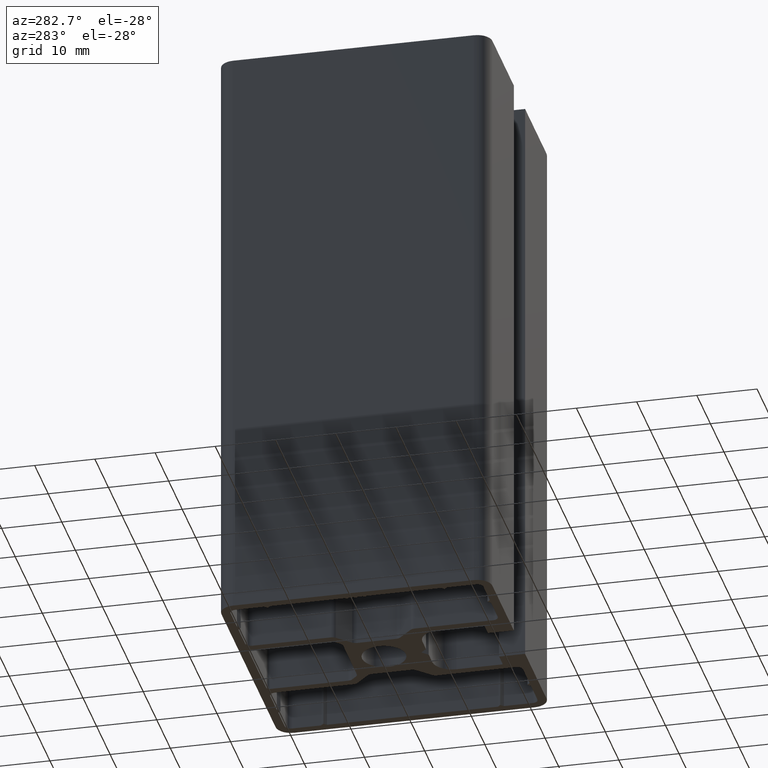
[diagram: clean part render]
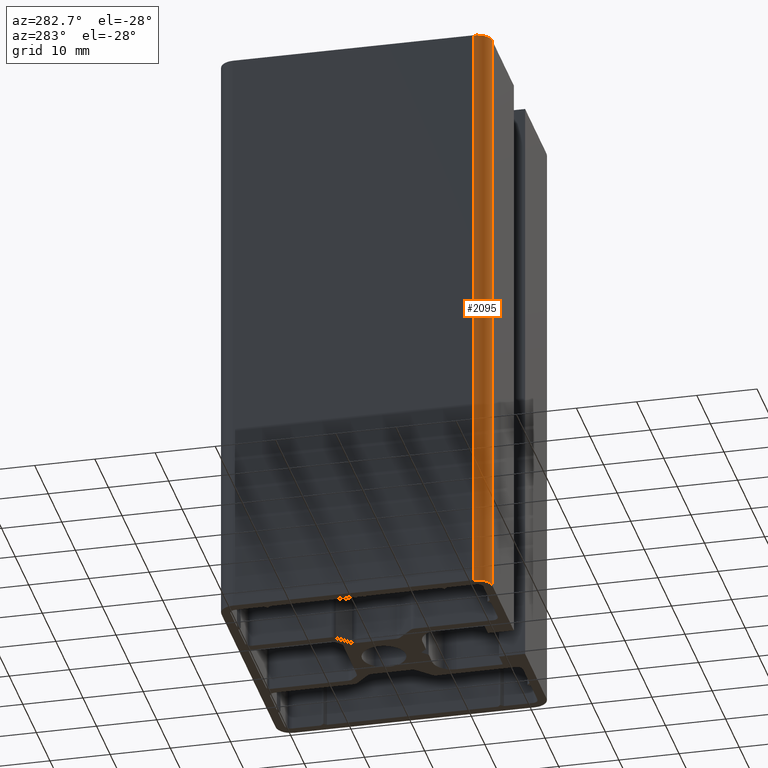
[diagram: same view with one face highlighted and labeled with its STEP entity id]
A machine part, auxiliary view. The second image highlights one B-rep face of the part: STEP entity #2095.
In plain terms, the highlighted cylindrical surface (edge-blend (fillet) strip) has radius 2.5 mm, axis along (0, 0, 1).
Its self-contained STEP definition (entity closure, byte-faithful):
#95=CIRCLE('',#2270,2.5);
#97=CIRCLE('',#2275,2.5);
#135=CYLINDRICAL_SURFACE('',#2274,2.5);
#235=FACE_OUTER_BOUND('',#344,.T.);
#344=EDGE_LOOP('',(#1806,#1807,#1808,#1809));
#574=LINE('',#3464,#803);
#576=LINE('',#3468,#805);
#803=VECTOR('',#2845,100.);
#805=VECTOR('',#2849,100.);
#1008=VERTEX_POINT('',#3453);
#1009=VERTEX_POINT('',#3455);
#1011=VERTEX_POINT('',#3463);
#1012=VERTEX_POINT('',#3467);
#1305=EDGE_CURVE('',#1009,#1008,#95,.T.);
#1309=EDGE_CURVE('',#1011,#1009,#574,.T.);
#1311=EDGE_CURVE('',#1012,#1008,#576,.T.);
#1312=EDGE_CURVE('',#1011,#1012,#97,.T.);
#1806=ORIENTED_EDGE('',*,*,#1305,.T.);
#1807=ORIENTED_EDGE('',*,*,#1311,.F.);
#1808=ORIENTED_EDGE('',*,*,#1312,.F.);
#1809=ORIENTED_EDGE('',*,*,#1309,.T.);
#2095=ADVANCED_FACE('',(#235),#135,.T.);
#2270=AXIS2_PLACEMENT_3D('',#3456,#2835,#2836);
#2274=AXIS2_PLACEMENT_3D('',#3466,#2847,#2848);
#2275=AXIS2_PLACEMENT_3D('',#3469,#2850,#2851);
#2835=DIRECTION('center_axis',(0.,0.,-1.));
#2836=DIRECTION('ref_axis',(-1.,0.,0.));
#2845=DIRECTION('',(0.,0.,1.));
#2847=DIRECTION('center_axis',(0.,0.,1.));
#2848=DIRECTION('ref_axis',(-1.,0.,0.));
#2849=DIRECTION('',(0.,0.,1.));
#2850=DIRECTION('center_axis',(0.,0.,-1.));
#2851=DIRECTION('ref_axis',(-1.,0.,0.));
#3453=CARTESIAN_POINT('',(-22.5,-20.,100.));
#3455=CARTESIAN_POINT('',(-20.,-22.5,100.));
#3456=CARTESIAN_POINT('Origin',(-20.,-20.,100.));
#3463=CARTESIAN_POINT('',(-20.,-22.5,0.));
#3464=CARTESIAN_POINT('',(-20.,-22.5,0.));
#3466=CARTESIAN_POINT('Origin',(-20.,-20.,0.));
#3467=CARTESIAN_POINT('',(-22.5,-20.,0.));
#3468=CARTESIAN_POINT('',(-22.5,-20.,0.));
#3469=CARTESIAN_POINT('Origin',(-20.,-20.,0.));